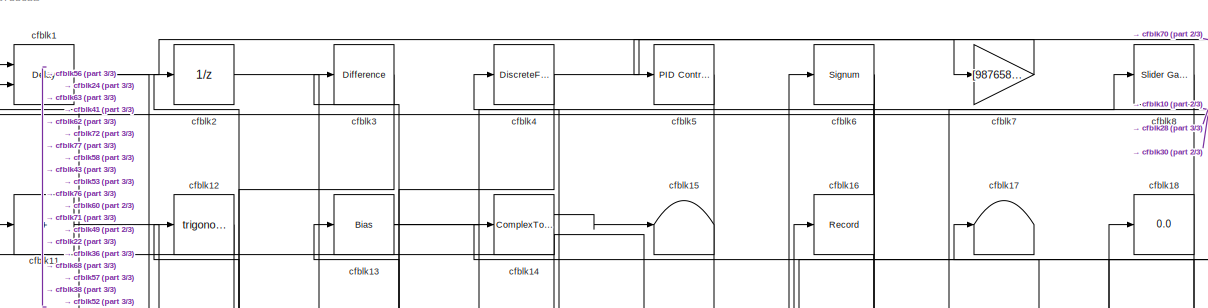
[diagram: root canvas - part 1/3, full width, top band]
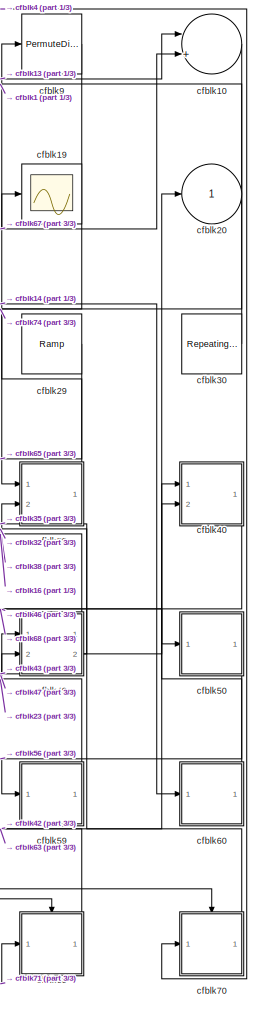
[diagram: root canvas - part 2/3, right side, full height]
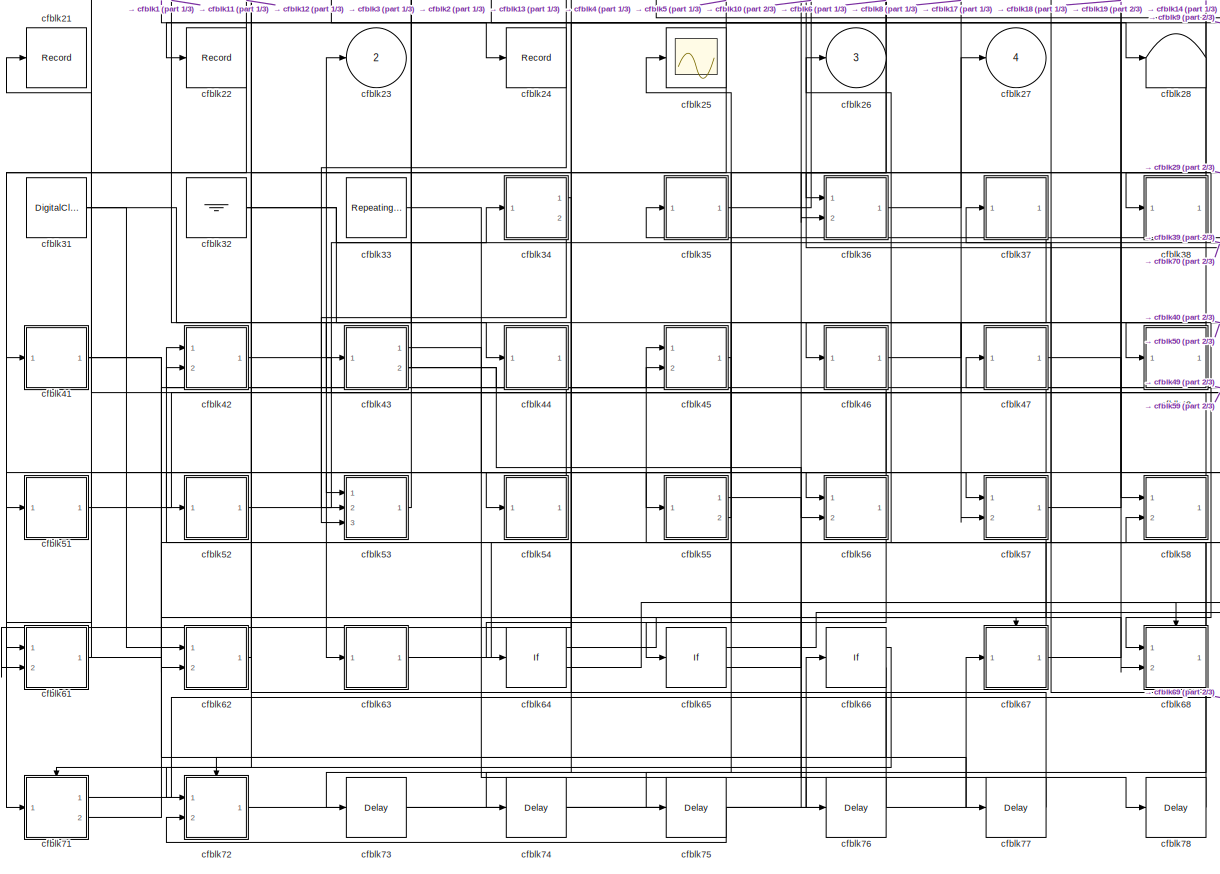
[diagram: root canvas - part 3/3, full width, middle band]
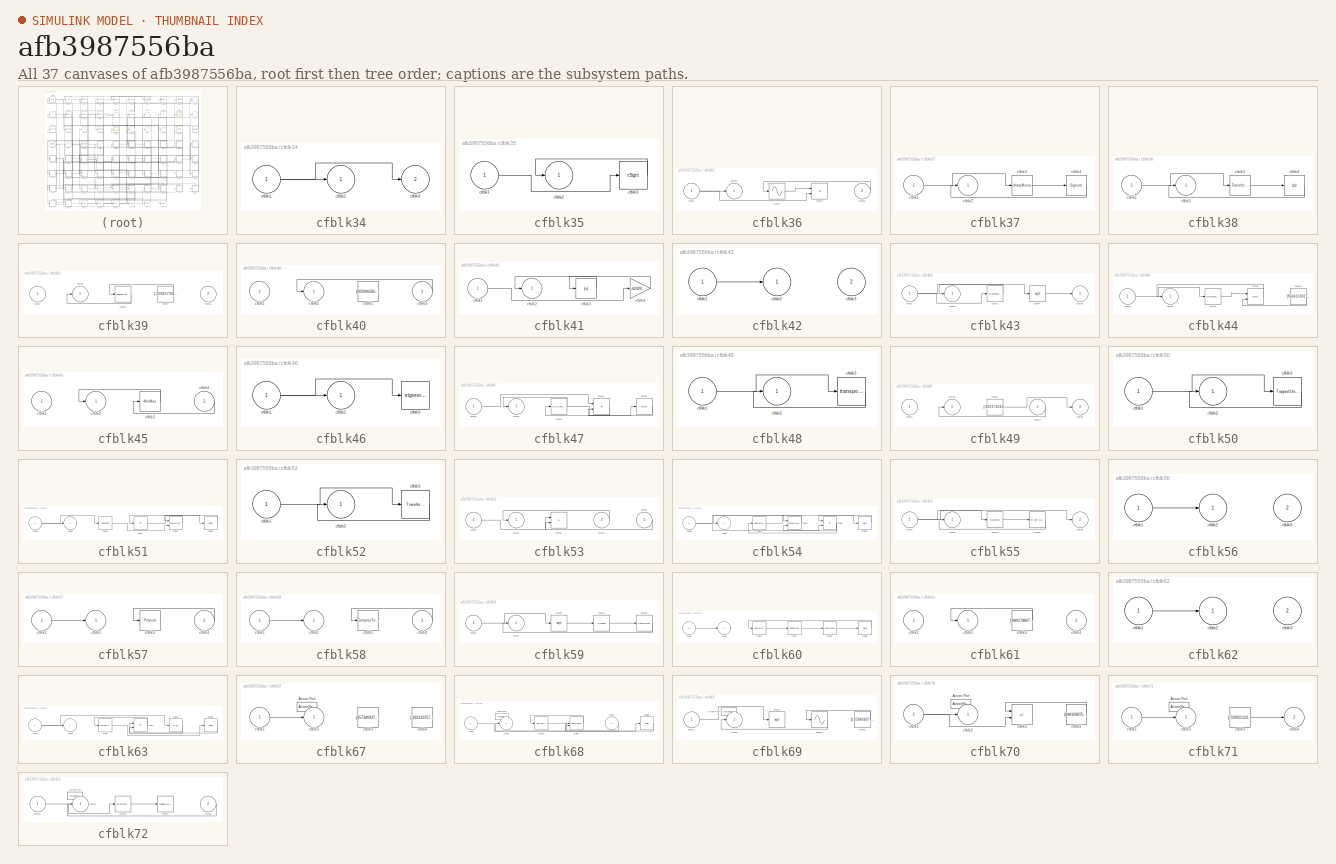
[diagram: thumbnail index - all 37 canvases of the model, root first then tree order]
MODEL slx_afb3987556ba
KIND model
CONFIG AbsTol = auto
CONFIG EnableMultiTasking = off
CONFIG FixedStep = auto
CONFIG MaxStep = auto
CONFIG MinStep = auto
CONFIG RelTol = 1e-3
CONFIG SampleTimeConstraint = Unconstrained
CONFIG SolverName = VariableStepAuto
CONFIG StartTime = 0.0
CONFIG StopTime = 10.0
BLOCK [Delay] cfblk1
  InputPortMap = u0,e6
  Ports = [2, 1]
  SampleTime = 1
  ShowEnablePort = on
BLOCK [Sum] cfblk10
  Inputs = |++
  Ports = [2, 1]
BLOCK [Sum] cfblk11
  IconShape = rectangular
  Inputs = +
  Ports = [1, 1]
BLOCK [Trigonometry] cfblk12
  Ports = [1, 1]
BLOCK [Bias] cfblk13
  Bias = [-445637449.858665]
  SaturateOnIntegerOverflow = off
BLOCK [ComplexToMagnitudeAngle] cfblk14
  Ports = [1, 2]
BLOCK [Terminator] cfblk15
BLOCK [Record] cfblk16
  FileSettingsInternal = {"entries":[{"content":{"excelSettings":{"content":{},"type":"Streamout.ExcelSettings"}},"type":"Streamout.FileSettingStorage","uuid":"bcba30e2-a7e8-405a-9570-f6df06466bcb"}],"packageUris":["http://schema.mathworks.com/mf0/streamout_blocks/R2020a"],"version":"1.0"}
  Ports = [1]
  SignalsInternal = {"entries":[{"content":{"signals":[{"content":{"blockPath":["sampleModel255/cfblk16"],"channel":[],"dimensions":[1],"domain":"sampleModel255/cfblk16","lineColor":"#a2142f","plots":[1],"port":1,"sid":[""],"signalID":10495,"signalName":"cfblk49:1"},"type":"RecordBlkView.Signal","uuid":"f066bb72-dd2c-4bd8-bcfc-d20f2ea079be"}]},"type":"RecordBlkView.InputSignals","uuid":"8c248f1a-7e81-44ad-9cf1-3fb42d...<+100ch>
  VisualizationBindings = {"sparklinesplugin":{"info":[{"bindingParametersList":[],"subplotID":1}]}}
BLOCK [Terminator] cfblk17
BLOCK [Display] cfblk18
  Decimation = 1
  Ports = [1]
BLOCK [Scope] cfblk19
  Floating = off
  NumInputPorts = 1
  Ports = [1]
BLOCK [UnitDelay] cfblk2
  HasFrameUpgradeWarning = on
BLOCK [Outport] cfblk20
BLOCK [Record] cfblk21
  FileSettingsInternal = {"entries":[{"content":{"excelSettings":{"content":{},"type":"Streamout.ExcelSettings"}},"type":"Streamout.FileSettingStorage","uuid":"b9985514-311d-45c5-af3a-e7c1f733d656"}],"packageUris":["http://schema.mathworks.com/mf0/streamout_blocks/R2020a"],"version":"1.0"}
  Ports = [1]
  SignalsInternal = {"entries":[{"content":{"signals":[{"content":{"blockPath":["sampleModel255/cfblk21"],"channel":[],"dimensions":[1],"domain":"sampleModel255/cfblk21","lineColor":"#139fff","plots":[1],"port":1,"sid":[""],"signalID":10499,"signalName":"cfblk61"},"type":"RecordBlkView.Signal","uuid":"f6652fd2-6723-4bcc-91e8-5e90c24315f7"}]},"type":"RecordBlkView.InputSignals","uuid":"2368f533-53f0-4e7a-ae71-17d9113f...<+98ch>
  VisualizationBindings = {"sparklinesplugin":{"info":[{"bindingParametersList":[],"subplotID":1}]}}
BLOCK [Record] cfblk22
  FileSettingsInternal = {"entries":[{"content":{"excelSettings":{"content":{},"type":"Streamout.ExcelSettings"}},"type":"Streamout.FileSettingStorage","uuid":"88f16591-4ce5-46ae-b41e-50627f38fa6a"}],"packageUris":["http://schema.mathworks.com/mf0/streamout_blocks/R2020a"],"version":"1.0"}
  Ports = [1]
  SignalsInternal = {"entries":[{"content":{"signals":[{"content":{"blockPath":["sampleModel255/cfblk22"],"channel":[],"dimensions":[1],"domain":"sampleModel255/cfblk22","lineColor":"#ff6929","plots":[1],"port":1,"sid":[""],"signalID":10503,"signalName":"cfblk6"},"type":"RecordBlkView.Signal","uuid":"f2667ad0-e5eb-4991-95e5-8c16daa194bc"}]},"type":"RecordBlkView.InputSignals","uuid":"a00fef7b-4fdb-41ca-9582-1832ec8d8...<+97ch>
  VisualizationBindings = {"sparklinesplugin":{"info":[{"bindingParametersList":[],"subplotID":1}]}}
BLOCK [Outport] cfblk23
  Port = 2
BLOCK [Record] cfblk24
  FileSettingsInternal = {"entries":[{"content":{"excelSettings":{"content":{},"type":"Streamout.ExcelSettings"}},"type":"Streamout.FileSettingStorage","uuid":"b3a82db9-fc42-4abc-b622-48ca2aee477a"}],"packageUris":["http://schema.mathworks.com/mf0/streamout_blocks/R2020a"],"version":"1.0"}
  Ports = [1]
  SignalsInternal = {"entries":[{"content":{"signals":[{"content":{"blockPath":["sampleModel255/cfblk24"],"channel":[],"dimensions":[1],"domain":"sampleModel255/cfblk24","lineColor":"#b746ff","plots":[1],"port":1,"sid":[""],"signalID":10507,"signalName":"cfblk1"},"type":"RecordBlkView.Signal","uuid":"334ec45f-c396-4067-82da-3699b80d794a"}]},"type":"RecordBlkView.InputSignals","uuid":"c4d4681f-74a4-4c02-baf1-17e94cd38...<+97ch>
  VisualizationBindings = {"sparklinesplugin":{"info":[{"bindingParametersList":[],"subplotID":1}]}}
BLOCK [Scope] cfblk25
  Floating = off
  NumInputPorts = 1
  Ports = [1]
BLOCK [Outport] cfblk26
  Port = 3
BLOCK [Outport] cfblk27
  Port = 4
BLOCK [Terminator] cfblk28
BLOCK [Reference] cfblk29  REF=simulink/Sources/Ramp
  Ports = [0, 1]
  SourceBlock = simulink/Sources/Ramp
  SourceProductBaseCode = SL
  SourceType = Ramp
BLOCK [Reference] cfblk3  REF=simulink/Discrete/Difference
  Ports = [1, 1]
  SourceBlock = simulink/Discrete/Difference
  SourceProductBaseCode = SL
  SourceType = Difference
BLOCK [Reference] cfblk30  REF=simulink/Sources/Repeating
Sequence
  Ports = [0, 1]
  SourceBlock = simulink/Sources/Repeating\nSequence
  SourceProductBaseCode = SL
  SourceType = Repeating table
BLOCK [DigitalClock] cfblk31
BLOCK [Ground] cfblk32
BLOCK [Reference] cfblk33  REF=simulink/Sources/Repeating
Sequence
Stair
  Ports = [0, 1]
  SourceBlock = simulink/Sources/Repeating\nSequence\nStair
  SourceProductBaseCode = SL
  SourceType = Repeating Sequence Stair
BLOCK [SubSystem] cfblk34
  Ports = [1, 2]
  RequestExecContextInheritance = off
BLOCK [Inport] cfblk34/cfblk1
BLOCK [Outport] cfblk34/cfblk2
BLOCK [Outport] cfblk34/cfblk3
  Port = 2
BLOCK [SubSystem] cfblk35
  Ports = [1, 1]
  RequestExecContextInheritance = off
BLOCK [Inport] cfblk35/cfblk1
BLOCK [Outport] cfblk35/cfblk2
BLOCK [Sqrt] cfblk35/cfblk3
  AlgorithmType = Newton-Raphson
  Operator = rSqrt
BLOCK [SubSystem] cfblk36
  Ports = [2, 1]
  RequestExecContextInheritance = off
BLOCK [Inport] cfblk36/cfblk1
BLOCK [Outport] cfblk36/cfblk2
BLOCK [Sin] cfblk36/cfblk3
  Ports = [1, 1]
  SampleTime = 0
  TimeSource = Use external signal
BLOCK [Product] cfblk36/cfblk4
  Inputs = **
  Ports = [2, 1]
BLOCK [Inport] cfblk36/cfblk5
  Port = 2
BLOCK [SubSystem] cfblk37
  Ports = [1, 1]
  RequestExecContextInheritance = off
BLOCK [Inport] cfblk37/cfblk1
BLOCK [Outport] cfblk37/cfblk2
BLOCK [UnaryMinus] cfblk37/cfblk3
BLOCK [Signum] cfblk37/cfblk4
BLOCK [SubSystem] cfblk38
  Ports = [1, 1]
  RequestExecContextInheritance = off
BLOCK [Inport] cfblk38/cfblk1
BLOCK [Outport] cfblk38/cfblk2
BLOCK [Reference] cfblk38/cfblk3  REF=simulink/Discrete/Transfer Fcn
First Order
  Ports = [1, 1]
  SourceBlock = simulink/Discrete/Transfer Fcn\nFirst Order
  SourceProductBaseCode = SL
  SourceType = First Order Transfer Fcn
BLOCK [UnitDelay] cfblk38/cfblk4
  HasFrameUpgradeWarning = on
BLOCK [SubSystem] cfblk39
  Ports = [2, 1]
  RequestExecContextInheritance = off
BLOCK [Inport] cfblk39/cfblk1
BLOCK [Outport] cfblk39/cfblk2
BLOCK [Reference] cfblk39/cfblk3  REF=simulink/Discrete/Tapped Delay
  Ports = [1, 1]
  SourceBlock = simulink/Discrete/Tapped Delay
  SourceProductBaseCode = SL
  SourceType = Tapped Delay Line
BLOCK [Constant] cfblk39/cfblk4
  SampleTime = 1
  Value = [-320821708.045909]
BLOCK [Inport] cfblk39/cfblk5
  Port = 2
BLOCK [DiscreteFilter] cfblk4
  InputPortMap = u0
  Ports = [1, 1]
  SampleTime = 1
BLOCK [SubSystem] cfblk40
  Ports = [2, 1]
  RequestExecContextInheritance = off
BLOCK [Inport] cfblk40/cfblk1
BLOCK [Outport] cfblk40/cfblk2
BLOCK [Constant] cfblk40/cfblk3
  SampleTime = 1
  Value = [605996582.946135]
BLOCK [Inport] cfblk40/cfblk4
  Port = 2
BLOCK [SubSystem] cfblk41
  Ports = [1, 1]
  RequestExecContextInheritance = off
BLOCK [Inport] cfblk41/cfblk1
BLOCK [Outport] cfblk41/cfblk2
BLOCK [Abs] cfblk41/cfblk3
  SaturateOnIntegerOverflow = off
BLOCK [Gain] cfblk41/cfblk4
  Gain = [-424041668.466470]
BLOCK [SubSystem] cfblk42
  Ports = [2, 1]
  RequestExecContextInheritance = off
BLOCK [Inport] cfblk42/cfblk1
BLOCK [Outport] cfblk42/cfblk2
BLOCK [Inport] cfblk42/cfblk3
  Port = 2
BLOCK [SubSystem] cfblk43
  Ports = [1, 2]
  RequestExecContextInheritance = off
BLOCK [Inport] cfblk43/cfblk1
BLOCK [Outport] cfblk43/cfblk2
BLOCK [DiscreteFilter] cfblk43/cfblk3
  InputPortMap = u0
  Ports = [1, 1]
  SampleTime = 1
BLOCK [Sqrt] cfblk43/cfblk4
BLOCK [Outport] cfblk43/cfblk5
  Port = 2
BLOCK [SubSystem] cfblk44
  Ports = [1, 1]
  RequestExecContextInheritance = off
BLOCK [Inport] cfblk44/cfblk1
BLOCK [Outport] cfblk44/cfblk2
BLOCK [DiscreteStateSpace] cfblk44/cfblk3
BLOCK [Delay] cfblk44/cfblk4
  DelayLengthSource = Input port
  InputPortMap = u0,p1
  Ports = [2, 1]
  SampleTime = 1
BLOCK [Constant] cfblk44/cfblk5
  SampleTime = 1
  Value = [964415081.405403]
BLOCK [SubSystem] cfblk45
  Ports = [2, 1]
  RequestExecContextInheritance = off
BLOCK [Inport] cfblk45/cfblk1
BLOCK [Outport] cfblk45/cfblk2
BLOCK [MinMax] cfblk45/cfblk3
  Function = max
  Ports = [1, 1]
BLOCK [Inport] cfblk45/cfblk4
  Port = 2
BLOCK [SubSystem] cfblk46
  Ports = [1, 1]
  RequestExecContextInheritance = off
BLOCK [Inport] cfblk46/cfblk1
BLOCK [Outport] cfblk46/cfblk2
BLOCK [Trigonometry] cfblk46/cfblk3
  Ports = [1, 1]
BLOCK [SubSystem] cfblk47
  Ports = [1, 1]
  RequestExecContextInheritance = off
BLOCK [Inport] cfblk47/cfblk1
BLOCK [Outport] cfblk47/cfblk2
BLOCK [Reference] cfblk47/cfblk3  REF=slpidlib/PID Controller
  Ports = [1, 1]
  SourceBlock = slpidlib/PID Controller
  SourceProductBaseCode = SL
  SourceType = PID 1dof
BLOCK [Product] cfblk47/cfblk4
  Ports = [2, 1]
BLOCK [Delay] cfblk47/cfblk5
  InputPortMap = u0
  Ports = [1, 1]
  SampleTime = 1
BLOCK [SubSystem] cfblk48
  Ports = [1, 1]
  RequestExecContextInheritance = off
BLOCK [Inport] cfblk48/cfblk1
BLOCK [Outport] cfblk48/cfblk2
BLOCK [Math] cfblk48/cfblk3
  Operator = transpose
  Ports = [1, 1]
BLOCK [SubSystem] cfblk49
  Ports = [2, 2]
  RequestExecContextInheritance = off
BLOCK [Inport] cfblk49/cfblk1
BLOCK [Outport] cfblk49/cfblk2
BLOCK [Constant] cfblk49/cfblk3
  SampleTime = 1
  Value = [-826174241.145449]
BLOCK [Inport] cfblk49/cfblk4
  Port = 2
BLOCK [Outport] cfblk49/cfblk5
  Port = 2
BLOCK [Reference] cfblk5  REF=slpidlib/PID Controller
  Ports = [1, 1]
  SourceBlock = slpidlib/PID Controller
  SourceProductBaseCode = SL
  SourceType = PID 1dof
BLOCK [SubSystem] cfblk50
  Ports = [1, 1]
  RequestExecContextInheritance = off
BLOCK [Inport] cfblk50/cfblk1
BLOCK [Outport] cfblk50/cfblk2
BLOCK [Reference] cfblk50/cfblk3  REF=simulink/Discrete/Tapped Delay
  Ports = [1, 1]
  SourceBlock = simulink/Discrete/Tapped Delay
  SourceProductBaseCode = SL
  SourceType = Tapped Delay Line
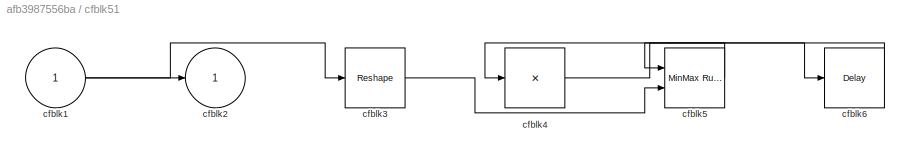
BLOCK [SubSystem] cfblk51
  Ports = [1, 1]
  RequestExecContextInheritance = off
BLOCK [Inport] cfblk51/cfblk1
BLOCK [Outport] cfblk51/cfblk2
BLOCK [Reshape] cfblk51/cfblk3
  Ports = [1, 1]
BLOCK [Product] cfblk51/cfblk4
  Inputs = *
  Ports = [1, 1]
BLOCK [Reference] cfblk51/cfblk5  REF=simulink/Math
Operations/MinMax
Running
Resettable
  Ports = [2, 1]
  SourceBlock = simulink/Math\nOperations/MinMax\nRunning\nResettable
  SourceProductBaseCode = SL
  SourceType = MinMax Running Resettable
BLOCK [Delay] cfblk51/cfblk6
  InputPortMap = u0
  Ports = [1, 1]
  SampleTime = 1
BLOCK [SubSystem] cfblk52
  Ports = [1, 1]
  RequestExecContextInheritance = off
BLOCK [Inport] cfblk52/cfblk1
BLOCK [Outport] cfblk52/cfblk2
BLOCK [Reference] cfblk52/cfblk3  REF=simulink/Discrete/Transfer Fcn
First Order
  Ports = [1, 1]
  SourceBlock = simulink/Discrete/Transfer Fcn\nFirst Order
  SourceProductBaseCode = SL
  SourceType = First Order Transfer Fcn
BLOCK [SubSystem] cfblk53
  Ports = [3, 1]
  RequestExecContextInheritance = off
BLOCK [Inport] cfblk53/cfblk1
BLOCK [Outport] cfblk53/cfblk2
BLOCK [Sum] cfblk53/cfblk3
  IconShape = rectangular
  Ports = [2, 1]
BLOCK [Inport] cfblk53/cfblk4
  Port = 2
BLOCK [Inport] cfblk53/cfblk5
  Port = 3
BLOCK [SubSystem] cfblk54
  Ports = [1, 1]
  RequestExecContextInheritance = off
BLOCK [Inport] cfblk54/cfblk1
BLOCK [Outport] cfblk54/cfblk2
BLOCK [DiscreteStateSpace] cfblk54/cfblk3
BLOCK [Reference] cfblk54/cfblk4  REF=simulink/Math
Operations/MinMax
Running
Resettable
  Ports = [2, 1]
  SourceBlock = simulink/Math\nOperations/MinMax\nRunning\nResettable
  SourceProductBaseCode = SL
  SourceType = MinMax Running Resettable
BLOCK [Product] cfblk54/cfblk5
  Inputs = **
  Ports = [2, 1]
BLOCK [Delay] cfblk54/cfblk6
  InputPortMap = u0
  Ports = [1, 1]
  SampleTime = 1
BLOCK [SubSystem] cfblk55
  Ports = [1, 2]
  RequestExecContextInheritance = off
BLOCK [Inport] cfblk55/cfblk1
BLOCK [Outport] cfblk55/cfblk2
BLOCK [Rounding] cfblk55/cfblk3
BLOCK [Reference] cfblk55/cfblk4  REF=simulink/Math
Operations/Slider
Gain
  Ports = [1, 1]
  SourceBlock = simulink/Math\nOperations/Slider\nGain
  SourceProductBaseCode = SL
  SourceType = Slider Gain
BLOCK [Outport] cfblk55/cfblk5
  Port = 2
BLOCK [SubSystem] cfblk56
  Ports = [2, 1]
  RequestExecContextInheritance = off
BLOCK [Inport] cfblk56/cfblk1
BLOCK [Outport] cfblk56/cfblk2
BLOCK [Inport] cfblk56/cfblk3
  Port = 2
BLOCK [SubSystem] cfblk57
  Ports = [2, 1]
  RequestExecContextInheritance = off
BLOCK [Inport] cfblk57/cfblk1
BLOCK [Outport] cfblk57/cfblk2
BLOCK [Polyval] cfblk57/cfblk3
  Coefs = [ +2.081618890e-019, -1.441693666e-014, +4.719686976e-010, -8.536869453e-006, +1.621573104e-001, -8.087801117e+001 ]
BLOCK [Inport] cfblk57/cfblk4
  Port = 2
BLOCK [SubSystem] cfblk58
  Ports = [2, 1]
  RequestExecContextInheritance = off
BLOCK [Inport] cfblk58/cfblk1
BLOCK [Outport] cfblk58/cfblk2
BLOCK [ComplexToRealImag] cfblk58/cfblk3
  Ports = [1, 2]
BLOCK [Inport] cfblk58/cfblk4
  Port = 2
BLOCK [SubSystem] cfblk59
  Ports = [1, 1]
  RequestExecContextInheritance = off
BLOCK [Inport] cfblk59/cfblk1
BLOCK [Outport] cfblk59/cfblk2
BLOCK [Sqrt] cfblk59/cfblk3
BLOCK [Signum] cfblk59/cfblk4
BLOCK [UnaryMinus] cfblk59/cfblk5
BLOCK [Signum] cfblk6
BLOCK [SubSystem] cfblk60
  Ports = [1, 1]
  RequestExecContextInheritance = off
BLOCK [Inport] cfblk60/cfblk1
BLOCK [Outport] cfblk60/cfblk2
BLOCK [DiscreteStateSpace] cfblk60/cfblk3
BLOCK [Reference] cfblk60/cfblk4  REF=simulink/Discrete/Tapped Delay
  Ports = [1, 1]
  SourceBlock = simulink/Discrete/Tapped Delay
  SourceProductBaseCode = SL
  SourceType = Tapped Delay Line
BLOCK [UnaryMinus] cfblk60/cfblk5
BLOCK [Delay] cfblk60/cfblk6
  InputPortMap = u0
  Ports = [1, 1]
  SampleTime = 1
BLOCK [SubSystem] cfblk61
  Ports = [2, 1]
  RequestExecContextInheritance = off
BLOCK [Inport] cfblk61/cfblk1
BLOCK [Outport] cfblk61/cfblk2
BLOCK [Constant] cfblk61/cfblk3
  SampleTime = 1
  Value = [-689178807.138897]
BLOCK [Inport] cfblk61/cfblk4
  Port = 2
BLOCK [SubSystem] cfblk62
  Ports = [2, 1]
  RequestExecContextInheritance = off
BLOCK [Inport] cfblk62/cfblk1
BLOCK [Outport] cfblk62/cfblk2
BLOCK [Inport] cfblk62/cfblk3
  Port = 2
BLOCK [SubSystem] cfblk63
  Ports = [1, 1]
  RequestExecContextInheritance = off
BLOCK [Inport] cfblk63/cfblk1
BLOCK [Outport] cfblk63/cfblk2
BLOCK [Reference] cfblk63/cfblk3  REF=slpidlib/PID Controller
  Ports = [1, 1]
  SourceBlock = slpidlib/PID Controller
  SourceProductBaseCode = SL
  SourceType = PID 1dof
BLOCK [Product] cfblk63/cfblk4
  Ports = [2, 1]
BLOCK [Sqrt] cfblk63/cfblk5
  AlgorithmType = Newton-Raphson
  Operator = rSqrt
BLOCK [Delay] cfblk63/cfblk6
  InputPortMap = u0
  Ports = [1, 1]
  SampleTime = 1
BLOCK [If] cfblk64
  IfExpression = u1 >= 0
  Ports = [1, 2]
  SampleTime = 1
BLOCK [If] cfblk65
  IfExpression = u1 >= 0
  Ports = [1, 2]
  SampleTime = 1
BLOCK [If] cfblk66
  IfExpression = u1 >= 0
  Ports = [1, 2]
  SampleTime = 1
BLOCK [SubSystem] cfblk67
  Ports = [1, 1, 0, 0, 0, 0, 0, 1]
  RequestExecContextInheritance = off
  TreatAsAtomicUnit = on
BLOCK [ActionPort] cfblk67/Action Port
  ActionPortLabel = if(u1 >= 0)
BLOCK [Inport] cfblk67/cfblk1
BLOCK [Outport] cfblk67/cfblk2
BLOCK [Constant] cfblk67/cfblk3
  SampleTime = 1
  Value = [457340937.713665]
BLOCK [Constant] cfblk67/cfblk4
  SampleTime = 1
  Value = [-182122357.570016]
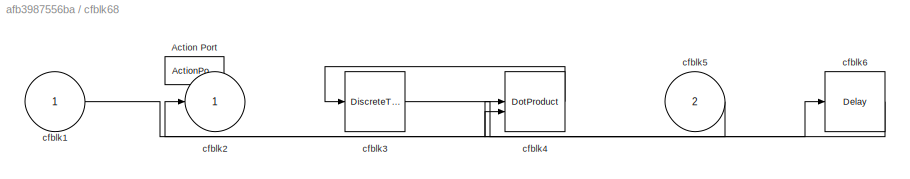
BLOCK [SubSystem] cfblk68
  Ports = [2, 1, 0, 0, 0, 0, 0, 1]
  RequestExecContextInheritance = off
  TreatAsAtomicUnit = on
BLOCK [ActionPort] cfblk68/Action Port
  ActionPortLabel = else
BLOCK [Inport] cfblk68/cfblk1
BLOCK [Outport] cfblk68/cfblk2
BLOCK [DiscreteTransferFcn] cfblk68/cfblk3
  InputPortMap = u0
  Ports = [1, 1]
BLOCK [DotProduct] cfblk68/cfblk4
  OutDataTypeStr = Inherit: Inherit via internal rule
BLOCK [Inport] cfblk68/cfblk5
  Port = 2
BLOCK [Delay] cfblk68/cfblk6
  InputPortMap = u0
  Ports = [1, 1]
BLOCK [SubSystem] cfblk69
  Ports = [1, 1, 0, 0, 0, 0, 0, 1]
  RequestExecContextInheritance = off
  TreatAsAtomicUnit = on
BLOCK [ActionPort] cfblk69/Action Port
  ActionPortLabel = if(u1 >= 0)
BLOCK [Inport] cfblk69/cfblk1
BLOCK [Outport] cfblk69/cfblk2
BLOCK [Sqrt] cfblk69/cfblk3
BLOCK [Sin] cfblk69/cfblk4
  Ports = [1, 1]
  SampleTime = 0
  TimeSource = Use external signal
BLOCK [Constant] cfblk69/cfblk5
  SampleTime = 1
  Value = [195980407.722203]
BLOCK [Gain] cfblk7
  Gain = [987658476.224935]
BLOCK [SubSystem] cfblk70
  Ports = [1, 1, 0, 0, 0, 0, 0, 1]
  RequestExecContextInheritance = off
  TreatAsAtomicUnit = on
BLOCK [ActionPort] cfblk70/Action Port
  ActionPortLabel = else
BLOCK [Inport] cfblk70/cfblk1
BLOCK [Outport] cfblk70/cfblk2
BLOCK [Sum] cfblk70/cfblk3
  IconShape = rectangular
  Inputs = --
  Ports = [2, 1]
BLOCK [Constant] cfblk70/cfblk4
  SampleTime = 1
  Value = [848109875.902462]
BLOCK [SubSystem] cfblk71
  Ports = [1, 2, 0, 0, 0, 0, 0, 1]
  RequestExecContextInheritance = off
  TreatAsAtomicUnit = on
BLOCK [ActionPort] cfblk71/Action Port
  ActionPortLabel = if(u1 >= 0)
BLOCK [Inport] cfblk71/cfblk1
BLOCK [Outport] cfblk71/cfblk2
BLOCK [Constant] cfblk71/cfblk3
  SampleTime = 1
  Value = [-720925123.632533]
BLOCK [Outport] cfblk71/cfblk4
  Port = 2
BLOCK [SubSystem] cfblk72
  Ports = [2, 1, 0, 0, 0, 0, 0, 1]
  RequestExecContextInheritance = off
  TreatAsAtomicUnit = on
BLOCK [ActionPort] cfblk72/Action Port
  ActionPortLabel = else
BLOCK [Inport] cfblk72/cfblk1
BLOCK [Outport] cfblk72/cfblk2
BLOCK [DiscreteTransferFcn] cfblk72/cfblk3
  InputPortMap = u0
  Ports = [1, 1]
BLOCK [Reference] cfblk72/cfblk4  REF=simulink/Discrete/Tapped Delay
  Ports = [1, 1]
  SourceBlock = simulink/Discrete/Tapped Delay
  SourceProductBaseCode = SL
  SourceType = Tapped Delay Line
BLOCK [Inport] cfblk72/cfblk5
  Port = 2
BLOCK [Delay] cfblk73
  InputPortMap = u0
  Ports = [1, 1]
  SampleTime = 1
BLOCK [Delay] cfblk74
  InputPortMap = u0
  Ports = [1, 1]
  SampleTime = 1
BLOCK [Delay] cfblk75
  InputPortMap = u0
  Ports = [1, 1]
  SampleTime = 1
BLOCK [Delay] cfblk76
  InputPortMap = u0
  Ports = [1, 1]
  SampleTime = 1
BLOCK [Delay] cfblk77
  InputPortMap = u0
  Ports = [1, 1]
  SampleTime = 1
BLOCK [Delay] cfblk78
  InputPortMap = u0
  Ports = [1, 1]
  SampleTime = 1
BLOCK [Reference] cfblk8  REF=simulink/Math
Operations/Slider
Gain
  Ports = [1, 1]
  SourceBlock = simulink/Math\nOperations/Slider\nGain
  SourceProductBaseCode = SL
  SourceType = Slider Gain
BLOCK [PermuteDimensions] cfblk9
LINE cfblk10:1 -> cfblk39:1
LINE cfblk11:1 -> cfblk63:1
LINE cfblk12:1 -> cfblk41:1
NET cfblk13:1 -> cfblk10:1, cfblk28:1
LINE cfblk14:1 -> cfblk15:1
NET cfblk14:2 -> cfblk11:1, cfblk53:3, cfblk60:1
NET cfblk1:1 -> cfblk24:1, cfblk7:1
LINE cfblk29:1 -> cfblk65:1
LINE cfblk2:1 -> cfblk58:1
LINE cfblk30:1 -> cfblk1:1
NET cfblk31:1 -> cfblk44:1, cfblk62:1
NET cfblk32:1 -> cfblk39:2, cfblk57:2
LINE cfblk33:1 -> cfblk57:1
NET cfblk34/cfblk1:1 -> cfblk34/cfblk2:1, cfblk34/cfblk3:1
LINE cfblk34:1 -> cfblk61:2
LINE cfblk34:2 -> cfblk53:2
LINE cfblk35/cfblk1:1 -> cfblk35/cfblk3:1
LINE cfblk35/cfblk3:1 -> cfblk35/cfblk2:1
LINE cfblk35:1 -> cfblk10:2
NET cfblk36/cfblk1:1 -> cfblk36/cfblk2:1, cfblk36/cfblk4:2
LINE cfblk36/cfblk3:1 -> cfblk36/cfblk4:1
LINE cfblk36/cfblk5:1 -> cfblk36/cfblk3:1
LINE cfblk36:1 -> cfblk8:1
LINE cfblk37/cfblk1:1 -> cfblk37/cfblk3:1
LINE cfblk37/cfblk3:1 -> cfblk37/cfblk4:1
LINE cfblk37/cfblk4:1 -> cfblk37/cfblk2:1
LINE cfblk37:1 -> cfblk55:1
LINE cfblk38/cfblk1:1 -> cfblk38/cfblk3:1
LINE cfblk38/cfblk3:1 -> cfblk38/cfblk4:1
LINE cfblk38/cfblk4:1 -> cfblk38/cfblk2:1
NET cfblk38:1 -> cfblk14:1, cfblk48:1
LINE cfblk39/cfblk3:1 -> cfblk39/cfblk2:1
LINE cfblk39/cfblk4:1 -> cfblk39/cfblk3:1
LINE cfblk39:1 -> cfblk9:1
LINE cfblk3:1 -> cfblk72:1
LINE cfblk40/cfblk4:1 -> cfblk40/cfblk2:1
LINE cfblk40:1 -> cfblk68:1
LINE cfblk41/cfblk1:1 -> cfblk41/cfblk4:1
LINE cfblk41/cfblk3:1 -> cfblk41/cfblk2:1
LINE cfblk41/cfblk4:1 -> cfblk41/cfblk3:1
NET cfblk41:1 -> cfblk68:2, cfblk77:1
LINE cfblk42/cfblk1:1 -> cfblk42/cfblk2:1
LINE cfblk42:1 -> cfblk49:2
NET cfblk43/cfblk1:1 -> cfblk43/cfblk3:1, cfblk43/cfblk4:1
LINE cfblk43/cfblk3:1 -> cfblk43/cfblk2:1
LINE cfblk43/cfblk4:1 -> cfblk43/cfblk5:1
LINE cfblk43:1 -> cfblk76:1
NET cfblk43:2 -> cfblk3:1, cfblk49:1, cfblk56:2
LINE cfblk44/cfblk1:1 -> cfblk44/cfblk3:1
LINE cfblk44/cfblk3:1 -> cfblk44/cfblk4:1
LINE cfblk44/cfblk4:1 -> cfblk44/cfblk2:1
LINE cfblk44/cfblk5:1 -> cfblk44/cfblk4:2
LINE cfblk44:1 -> cfblk54:1
LINE cfblk45/cfblk3:1 -> cfblk45/cfblk2:1
LINE cfblk45/cfblk4:1 -> cfblk45/cfblk3:1
LINE cfblk45:1 -> cfblk75:1
NET cfblk46/cfblk1:1 -> cfblk46/cfblk2:1, cfblk46/cfblk3:1
NET cfblk46:1 -> cfblk50:1, cfblk51:1
LINE cfblk47/cfblk1:1 -> cfblk47/cfblk4:1
NET cfblk47/cfblk3:1 -> cfblk47/cfblk2:1, cfblk47/cfblk5:1
LINE cfblk47/cfblk4:1 -> cfblk47/cfblk3:1
LINE cfblk47/cfblk5:1 -> cfblk47/cfblk4:2
NET cfblk47:1 -> cfblk59:1, cfblk61:1
LINE cfblk48/cfblk1:1 -> cfblk48/cfblk3:1
LINE cfblk48/cfblk3:1 -> cfblk48/cfblk2:1
LINE cfblk48:1 -> cfblk46:1
LINE cfblk49/cfblk3:1 -> cfblk49/cfblk5:1
LINE cfblk49/cfblk4:1 -> cfblk49/cfblk2:1
LINE cfblk49:1 -> cfblk16:1
NET cfblk49:2 -> cfblk35:1, cfblk40:1, cfblk47:1
NET cfblk4:1 -> cfblk43:1, cfblk70:1
LINE cfblk50/cfblk1:1 -> cfblk50/cfblk3:1
LINE cfblk50/cfblk3:1 -> cfblk50/cfblk2:1
LINE cfblk50:1 -> cfblk56:1
NET cfblk51/cfblk1:1 -> cfblk51/cfblk2:1, cfblk51/cfblk3:1
LINE cfblk51/cfblk3:1 -> cfblk51/cfblk5:2
LINE cfblk51/cfblk4:1 -> cfblk51/cfblk6:1
LINE cfblk51/cfblk5:1 -> cfblk51/cfblk4:1
LINE cfblk51/cfblk6:1 -> cfblk51/cfblk5:1
LINE cfblk51:1 -> cfblk27:1
LINE cfblk52/cfblk1:1 -> cfblk52/cfblk3:1
LINE cfblk52/cfblk3:1 -> cfblk52/cfblk2:1
LINE cfblk52:1 -> cfblk34:1
LINE cfblk53/cfblk1:1 -> cfblk53/cfblk3:1
LINE cfblk53/cfblk4:1 -> cfblk53/cfblk2:1
LINE cfblk53/cfblk5:1 -> cfblk53/cfblk3:2
LINE cfblk53:1 -> cfblk13:1
NET cfblk54/cfblk1:1 -> cfblk54/cfblk4:1, cfblk54/cfblk5:2
LINE cfblk54/cfblk3:1 -> cfblk54/cfblk6:1
LINE cfblk54/cfblk4:1 -> cfblk54/cfblk2:1
NET cfblk54/cfblk5:1 -> cfblk54/cfblk3:1, cfblk54/cfblk4:2
LINE cfblk54/cfblk6:1 -> cfblk54/cfblk5:1
LINE cfblk54:1 -> cfblk53:1
NET cfblk55/cfblk1:1 -> cfblk55/cfblk3:1, cfblk55/cfblk5:1
LINE cfblk55/cfblk3:1 -> cfblk55/cfblk4:1
LINE cfblk55/cfblk4:1 -> cfblk55/cfblk2:1
LINE cfblk55:1 -> cfblk78:1
LINE cfblk55:2 -> cfblk42:2
LINE cfblk56/cfblk1:1 -> cfblk56/cfblk2:1
NET cfblk56:1 -> cfblk1:2, cfblk64:1
LINE cfblk57/cfblk1:1 -> cfblk57/cfblk2:1
LINE cfblk57/cfblk4:1 -> cfblk57/cfblk3:1
NET cfblk57:1 -> cfblk18:1, cfblk62:2
LINE cfblk58/cfblk1:1 -> cfblk58/cfblk2:1
LINE cfblk58/cfblk4:1 -> cfblk58/cfblk3:1
LINE cfblk58:1 -> cfblk25:1
LINE cfblk59/cfblk1:1 -> cfblk59/cfblk3:1
LINE cfblk59/cfblk3:1 -> cfblk59/cfblk4:1
LINE cfblk59/cfblk4:1 -> cfblk59/cfblk5:1
LINE cfblk59/cfblk5:1 -> cfblk59/cfblk2:1
LINE cfblk59:1 -> cfblk23:1
LINE cfblk5:1 -> cfblk71:1
LINE cfblk60/cfblk1:1 -> cfblk60/cfblk2:1
LINE cfblk60/cfblk3:1 -> cfblk60/cfblk4:1
LINE cfblk60/cfblk4:1 -> cfblk60/cfblk5:1
LINE cfblk60/cfblk5:1 -> cfblk60/cfblk6:1
LINE cfblk60/cfblk6:1 -> cfblk60/cfblk3:1
LINE cfblk60:1 -> cfblk20:1
LINE cfblk61/cfblk3:1 -> cfblk61/cfblk2:1
NET cfblk61:1 -> cfblk21:1, cfblk58:2
LINE cfblk62/cfblk1:1 -> cfblk62/cfblk2:1
LINE cfblk62:1 -> cfblk2:1
NET cfblk63/cfblk1:1 -> cfblk63/cfblk2:1, cfblk63/cfblk5:1
LINE cfblk63/cfblk3:1 -> cfblk63/cfblk6:1
LINE cfblk63/cfblk4:1 -> cfblk63/cfblk3:1
LINE cfblk63/cfblk5:1 -> cfblk63/cfblk4:1
LINE cfblk63/cfblk6:1 -> cfblk63/cfblk4:2
LINE cfblk63:1 -> cfblk40:2
LINE cfblk64:1 -> cfblk67:ifaction
LINE cfblk64:2 -> cfblk68:ifaction
LINE cfblk65:1 -> cfblk69:ifaction
LINE cfblk65:2 -> cfblk70:ifaction
LINE cfblk66:1 -> cfblk71:ifaction
LINE cfblk66:2 -> cfblk72:ifaction
LINE cfblk67/cfblk1:1 -> cfblk67/cfblk2:1
NET cfblk67:1 -> cfblk19:1, cfblk45:1
LINE cfblk68/cfblk1:1 -> cfblk68/cfblk4:1
LINE cfblk68/cfblk3:1 -> cfblk68/cfblk6:1
LINE cfblk68/cfblk4:1 -> cfblk68/cfblk3:1
LINE cfblk68/cfblk5:1 -> cfblk68/cfblk2:1
LINE cfblk68/cfblk6:1 -> cfblk68/cfblk4:2
NET cfblk68:1 -> cfblk17:1, cfblk26:1, cfblk73:1
LINE cfblk69/cfblk1:1 -> cfblk69/cfblk3:1
LINE cfblk69/cfblk4:1 -> cfblk69/cfblk2:1
LINE cfblk69/cfblk5:1 -> cfblk69/cfblk4:1
LINE cfblk69:1 -> cfblk42:1
NET cfblk6:1 -> cfblk22:1, cfblk36:1, cfblk36:2
NET cfblk70/cfblk1:1 -> cfblk70/cfblk2:1, cfblk70/cfblk3:2
LINE cfblk70/cfblk4:1 -> cfblk70/cfblk3:1
LINE cfblk70:1 -> cfblk38:1
LINE cfblk71/cfblk1:1 -> cfblk71/cfblk2:1
LINE cfblk71/cfblk3:1 -> cfblk71/cfblk4:1
LINE cfblk71:1 -> cfblk69:1
LINE cfblk71:2 -> cfblk45:2
LINE cfblk72/cfblk1:1 -> cfblk72/cfblk3:1
LINE cfblk72/cfblk3:1 -> cfblk72/cfblk4:1
LINE cfblk72/cfblk5:1 -> cfblk72/cfblk2:1
LINE cfblk72:1 -> cfblk6:1
LINE cfblk73:1 -> cfblk66:1
LINE cfblk74:1 -> cfblk67:1
LINE cfblk75:1 -> cfblk72:2
LINE cfblk76:1 -> cfblk4:1
LINE cfblk77:1 -> cfblk12:1
LINE cfblk78:1 -> cfblk37:1
LINE cfblk7:1 -> cfblk5:1
LINE cfblk8:1 -> cfblk52:1
LINE cfblk9:1 -> cfblk74:1
note: NET lines group one-source signal fan-out (src -> all destinations, sorted); 1:1 wires keep LINE
